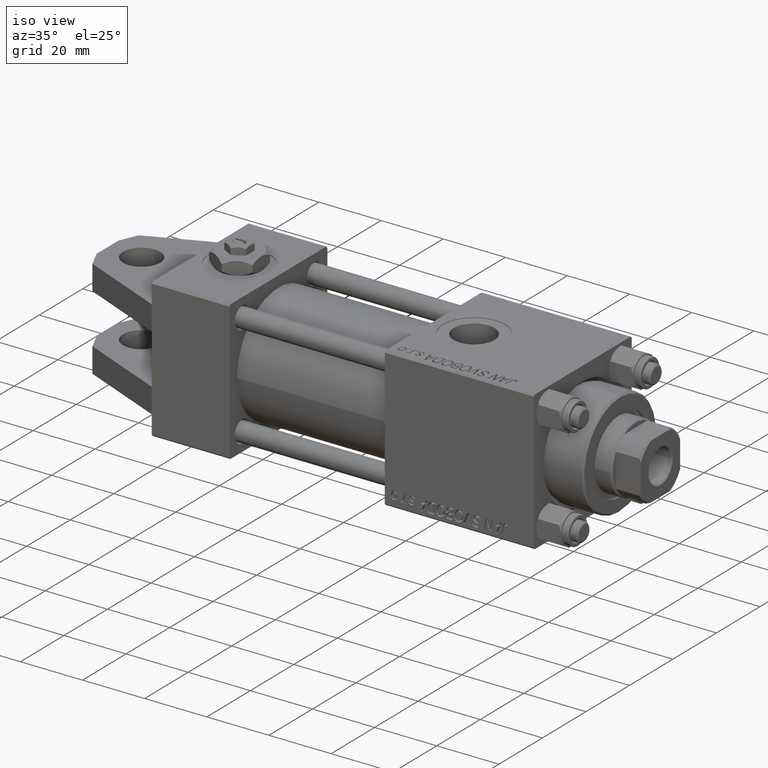
[diagram: clean part render]
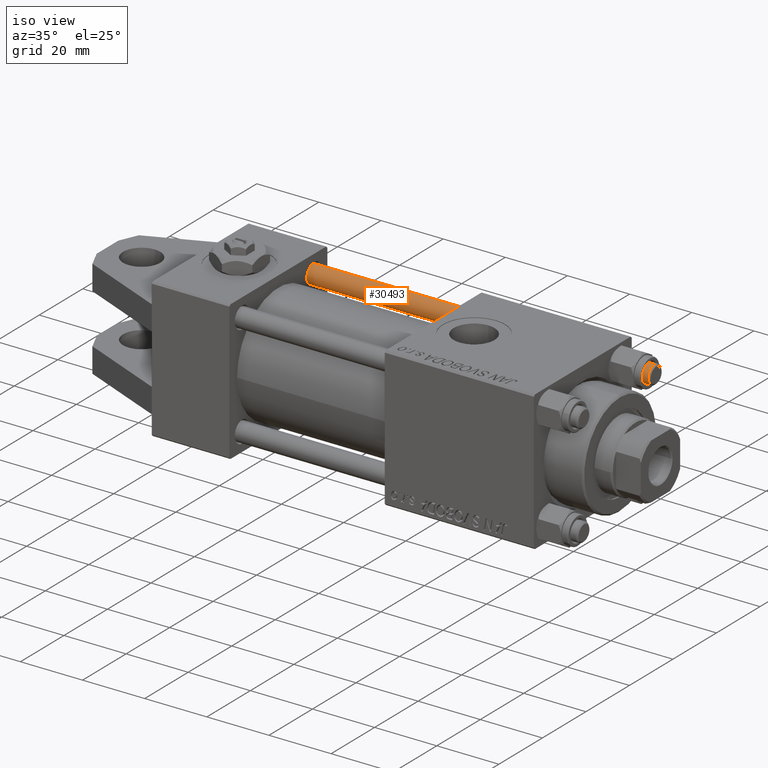
[diagram: same view with one face highlighted and labeled with its STEP entity id]
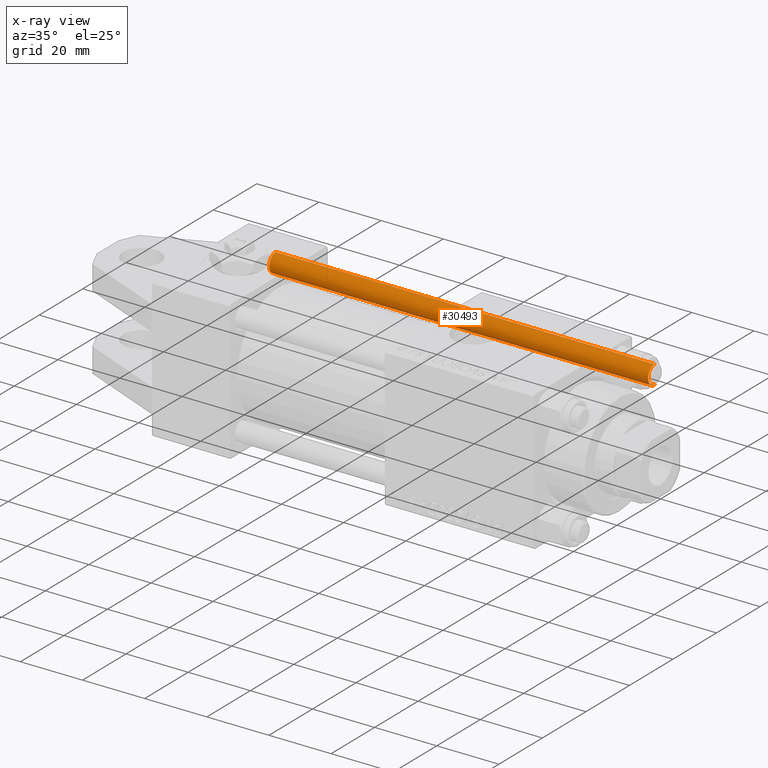
[diagram: x-ray of the same camera — body ghosted, the highlighted face saturated]
A machine part, iso view. The second image highlights one B-rep face of the part: STEP entity #30493.
The next image is the same camera in x-ray: the body ghosted, the highlighted face saturated — about 0% of this face is hidden behind the body in this view.
In plain terms, the highlighted cylindrical surface (edge-blend (fillet) strip) has radius 3 mm, axis along (-1, 0, -0).
Its self-contained STEP definition (entity closure, byte-faithful):
#1163 = DIRECTION ( 'NONE',  ( -1.000000000000000000, 0.000000000000000000, 0.000000000000000000 ) ) ;
#2068 = CARTESIAN_POINT ( 'NONE',  ( 0.000000000000000000, 0.000000000000000000, 122.4999999999999858 ) ) ;
#3036 = CARTESIAN_POINT ( 'NONE',  ( 3.000000000000000444, 3.673940397442060361E-16, 122.4999999999999858 ) ) ;
#5344 = CARTESIAN_POINT ( 'NONE',  ( -3.000000000000000444, 0.000000000000000000, 0.5000000000000004441 ) ) ;
#5357 = CARTESIAN_POINT ( 'NONE',  ( 0.000000000000000000, 0.000000000000000000, 123.0000000000000000 ) ) ;
#5930 = ORIENTED_EDGE ( 'NONE', *, *, #51253, .T. ) ;
#7025 = AXIS2_PLACEMENT_3D ( 'NONE', #2068, #18031, #30041 ) ;
#8030 = ORIENTED_EDGE ( 'NONE', *, *, #49642, .T. ) ;
#8173 = DIRECTION ( 'NONE',  ( -0.000000000000000000, -0.000000000000000000, -1.000000000000000000 ) ) ;
#8520 = VERTEX_POINT ( 'NONE', #51023 ) ;
#11586 = VERTEX_POINT ( 'NONE', #5344 ) ;
#13204 = FACE_OUTER_BOUND ( 'NONE', #28537, .T. ) ;
#14140 = EDGE_CURVE ( 'NONE', #38270, #8520, #37578, .T. ) ;
#16684 = DIRECTION ( 'NONE',  ( 1.000000000000000000, 0.000000000000000000, 0.000000000000000000 ) ) ;
#17464 = CARTESIAN_POINT ( 'NONE',  ( 0.000000000000000000, 0.000000000000000000, 0.5000000000000004441 ) ) ;
#17974 = ORIENTED_EDGE ( 'NONE', *, *, #18326, .T. ) ;
#18031 = DIRECTION ( 'NONE',  ( 0.000000000000000000, 0.000000000000000000, -1.000000000000000000 ) ) ;
#18326 = EDGE_CURVE ( 'NONE', #38270, #51376, #46224, .T. ) ;
#18451 = ORIENTED_EDGE ( 'NONE', *, *, #14140, .F. ) ;
#22770 = VECTOR ( 'NONE', #8173, 1000.000000000000000 ) ;
#28537 = EDGE_LOOP ( 'NONE', ( #18451, #17974, #8030, #5930 ) ) ;
#28958 = CARTESIAN_POINT ( 'NONE',  ( 3.000000000000000444, 3.673940397442060361E-16, 123.0000000000000000 ) ) ;
#28961 = DIRECTION ( 'NONE',  ( -0.000000000000000000, -0.000000000000000000, 1.000000000000000000 ) ) ;
#29126 = CYLINDRICAL_SURFACE ( 'NONE', #32725, 3.000000000000000444 ) ;
#30041 = DIRECTION ( 'NONE',  ( 1.000000000000000000, 0.000000000000000000, 0.000000000000000000 ) ) ;
#30493 = ADVANCED_FACE ( 'NONE', ( #13204 ), #29126, .T. ) ;
#32725 = AXIS2_PLACEMENT_3D ( 'NONE', #5357, #45058, #1163 ) ;
#36537 = DIRECTION ( 'NONE',  ( -0.000000000000000000, -0.000000000000000000, -1.000000000000000000 ) ) ;
#37578 = LINE ( 'NONE', #28958, #46131 ) ;
#38270 = VERTEX_POINT ( 'NONE', #3036 ) ;
#41987 = CIRCLE ( 'NONE', #43619, 3.000000000000000444 ) ;
#42014 = CARTESIAN_POINT ( 'NONE',  ( -3.000000000000000444, 0.000000000000000000, 122.4999999999999858 ) ) ;
#43619 = AXIS2_PLACEMENT_3D ( 'NONE', #17464, #28961, #16684 ) ;
#43965 = CARTESIAN_POINT ( 'NONE',  ( -3.000000000000000444, 0.000000000000000000, 123.0000000000000000 ) ) ;
#45058 = DIRECTION ( 'NONE',  ( -0.000000000000000000, -0.000000000000000000, -1.000000000000000000 ) ) ;
#46131 = VECTOR ( 'NONE', #36537, 1000.000000000000000 ) ;
#46224 = CIRCLE ( 'NONE', #7025, 3.000000000000000444 ) ;
#49642 = EDGE_CURVE ( 'NONE', #51376, #11586, #51567, .T. ) ;
#51023 = CARTESIAN_POINT ( 'NONE',  ( 3.000000000000000444, 3.673940397442060361E-16, 0.5000000000000004441 ) ) ;
#51253 = EDGE_CURVE ( 'NONE', #11586, #8520, #41987, .T. ) ;
#51376 = VERTEX_POINT ( 'NONE', #42014 ) ;
#51567 = LINE ( 'NONE', #43965, #22770 ) ;